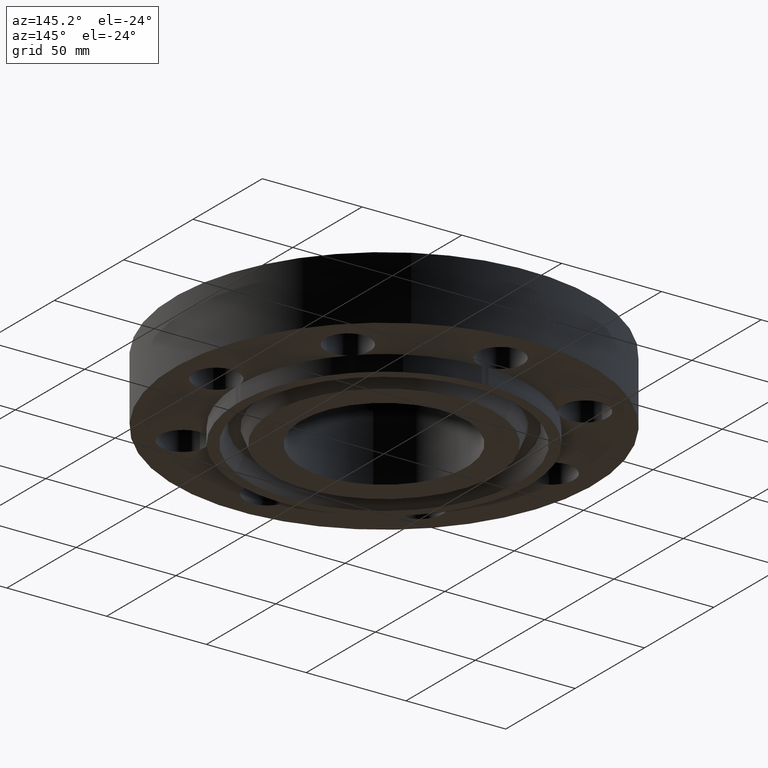
[diagram: clean part render]
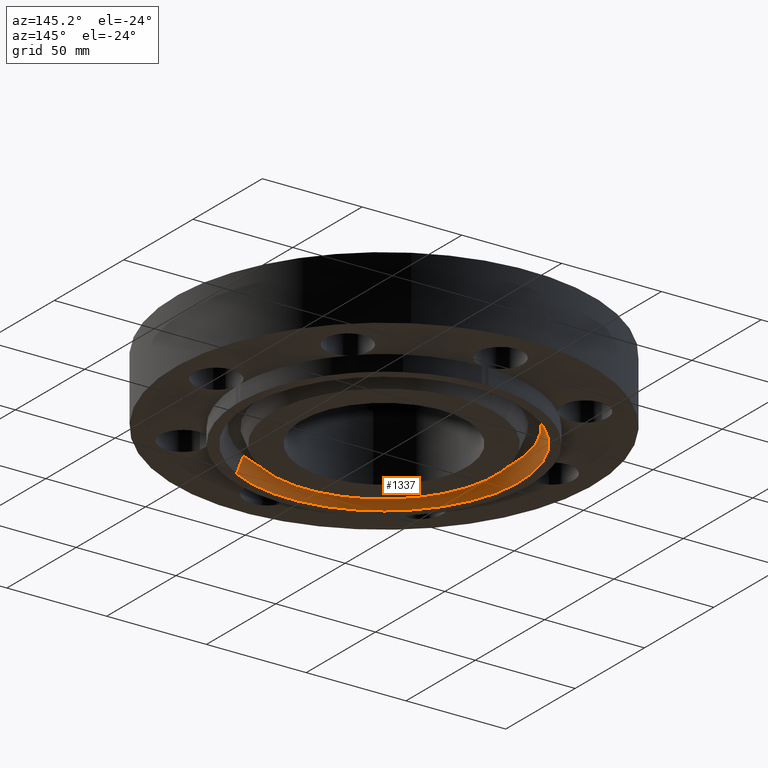
[diagram: same view with one face highlighted and labeled with its STEP entity id]
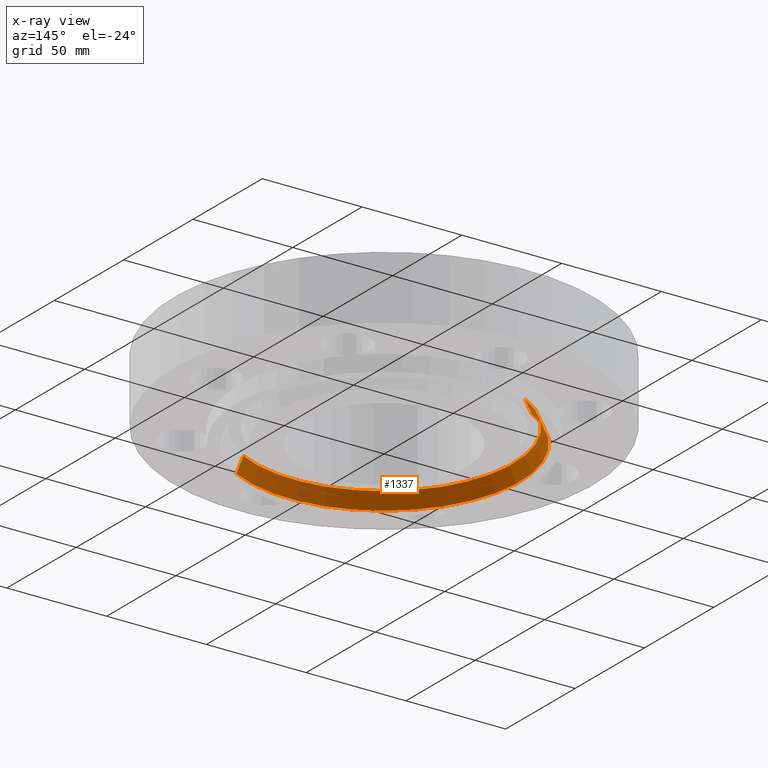
[diagram: x-ray of the same camera — body ghosted, the highlighted face saturated]
A machine part, auxiliary view. The second image highlights one B-rep face of the part: STEP entity #1337.
The next image is the same camera in x-ray: the body ghosted, the highlighted face saturated — about 0% of this face is hidden behind the body in this view.
In plain terms, the highlighted conical surface has half-angle 23 deg.
Its self-contained STEP definition (entity closure, byte-faithful):
#339=AXIS2_PLACEMENT_3D('Circle Axis2P3D',#337,#338,$) ;
#1298=AXIS2_PLACEMENT_3D('Cone Axis2P3D',#1295,#1296,#1297) ;
#1328=AXIS2_PLACEMENT_3D('Circle Axis2P3D',#1326,#1327,$) ;
#337=CARTESIAN_POINT('Axis2P3D Location',(-2.79741234551E-016,0.,-0.313000000001)) ;
#341=CARTESIAN_POINT('Vertex',(1.28102503916,-2.34490060538,-0.313000000001)) ;
#343=CARTESIAN_POINT('Vertex',(-1.28102503916,2.34490060538,-0.313000000001)) ;
#1295=CARTESIAN_POINT('Axis2P3D Location',(0.,0.,-0.0188873350169)) ;
#1300=CARTESIAN_POINT('Line Origine',(1.25109847736,-2.29012040146,-0.165943667509)) ;
#1304=CARTESIAN_POINT('Vertex',(1.22117191556,-2.23534019754,-0.0188873350169)) ;
#1311=CARTESIAN_POINT('Vertex',(-1.22117191556,2.23534019754,-0.0188873350169)) ;
#1314=CARTESIAN_POINT('Line Origine',(-1.25109847736,2.29012040146,-0.165943667509)) ;
#1326=CARTESIAN_POINT('Axis2P3D Location',(0.,0.,-0.0188873350169)) ;
#338=DIRECTION('Axis2P3D Direction',(0.,0.,-0.0393700787402)) ;
#1296=DIRECTION('Axis2P3D Direction',(-0.,-0.,-0.0393700787402)) ;
#1297=DIRECTION('Axis2P3D XDirection',(0.0188750212049,-0.0345504945626,0.)) ;
#1301=DIRECTION('Vector Direction',(0.00737505833565,-0.0134999537303,-0.0362403485611)) ;
#1315=DIRECTION('Vector Direction',(-0.00737505833565,0.0134999537303,-0.0362403485611)) ;
#1327=DIRECTION('Axis2P3D Direction',(0.,0.,-0.0393700787402)) ;
#1302=VECTOR('Line Direction',#1301,0.0393700787402) ;
#1316=VECTOR('Line Direction',#1315,0.0393700787402) ;
#1332=ORIENTED_EDGE('',*,*,#345,.T.) ;
#1333=ORIENTED_EDGE('',*,*,#1318,.T.) ;
#1334=ORIENTED_EDGE('',*,*,#1330,.T.) ;
#1335=ORIENTED_EDGE('',*,*,#1306,.F.) ;
#1337=ADVANCED_FACE('PartBody',(#1336),#1299,.F.) ;
#340=CIRCLE('generated circle',#339,2.67200000001) ;
#1329=CIRCLE('generated circle',#1328,2.5471565806) ;
#1299=CONICAL_SURFACE('Cone',#1298,2.5471565806,0.401425727959) ;
#345=EDGE_CURVE('',#342,#344,#340,.T.) ;
#1306=EDGE_CURVE('',#342,#1305,#1303,.F.) ;
#1318=EDGE_CURVE('',#344,#1312,#1317,.F.) ;
#1330=EDGE_CURVE('',#1312,#1305,#1329,.F.) ;
#1331=EDGE_LOOP('',(#1332,#1333,#1334,#1335)) ;
#1336=FACE_OUTER_BOUND('',#1331,.T.) ;
#1303=LINE('Line',#1300,#1302) ;
#1317=LINE('Line',#1314,#1316) ;
#342=VERTEX_POINT('',#341) ;
#344=VERTEX_POINT('',#343) ;
#1305=VERTEX_POINT('',#1304) ;
#1312=VERTEX_POINT('',#1311) ;